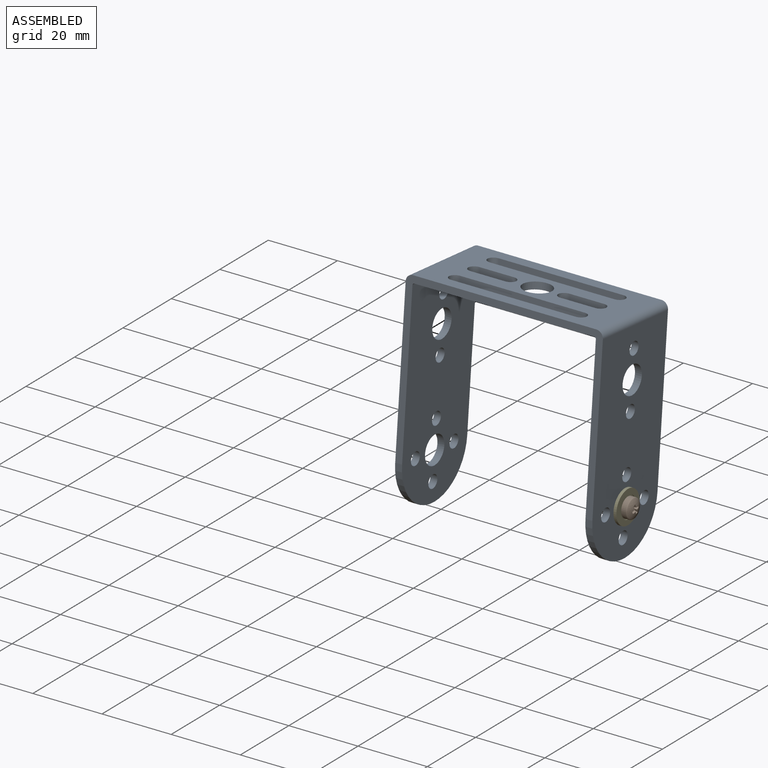
[diagram: assembled view]
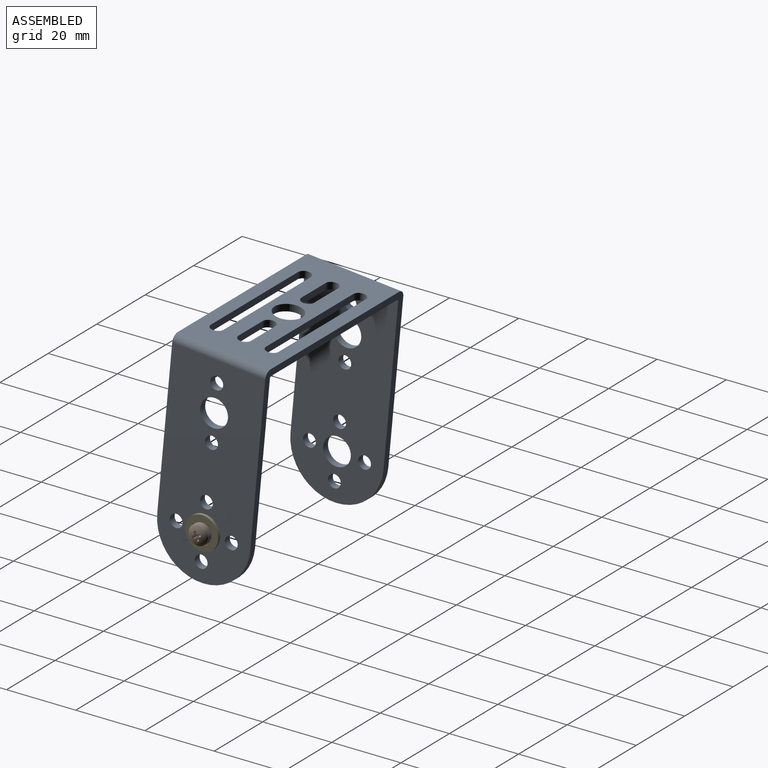
[diagram: assembled view, second angle]
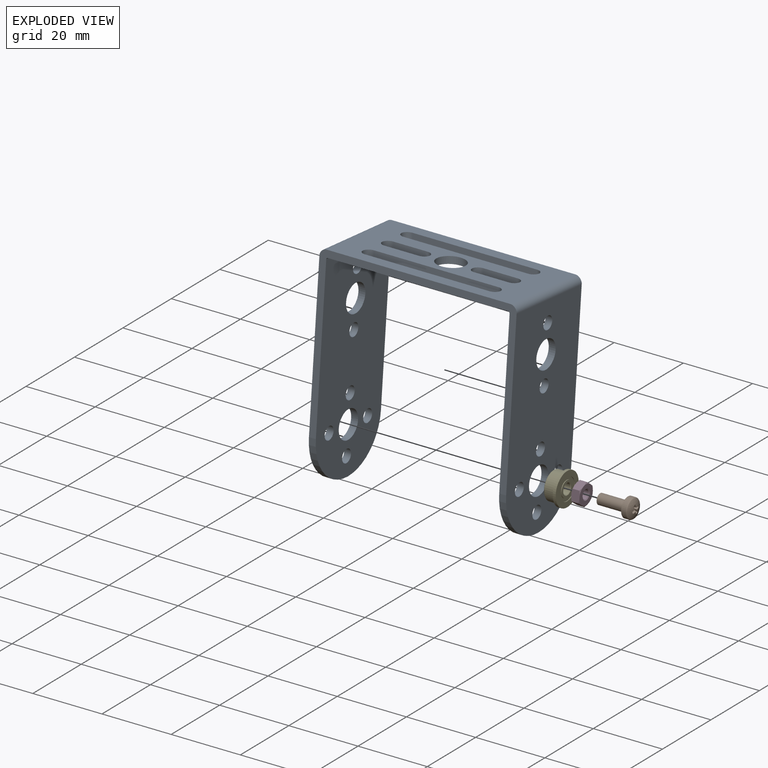
[diagram: exploded view]
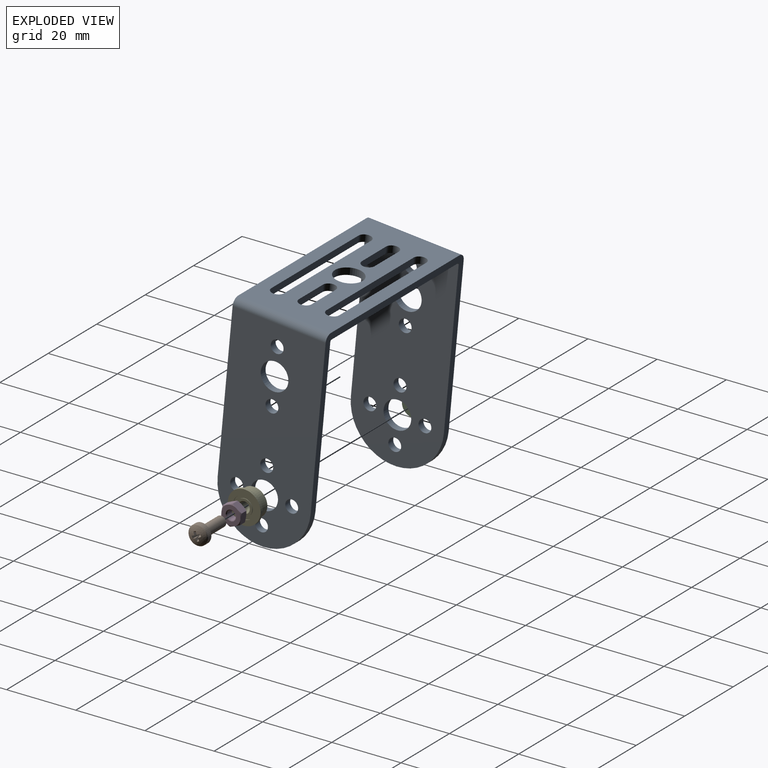
[diagram: exploded view, second angle]
ASSEMBLY  parts=5 mates=4
PART A: 47 faces, bbox 57x27x61.5 mm
  f0: cylinder r=1.85mm len=3.7mm, axis (1,0,0), area 23.2mm2, adj f19,f20
  f1: cylinder r=1.85mm len=3.7mm, axis (1,0,0), area 23.2mm2, adj f17,f22
  f2: cylinder r=1.85mm len=3.7mm, axis (1,0,0), area 23.2mm2, adj f19,f20
  f3: cylinder r=1.85mm len=3.7mm, axis (1,0,0), area 23.2mm2, adj f17,f22
  f4: cylinder r=4mm len=8mm, axis (1,0,0), area 50.3mm2, adj f19,f20
  f5: cylinder r=4mm len=8mm, axis (1,0,0), area 50.3mm2, adj f17,f22
  f6: cylinder r=1.85mm len=3.7mm, axis (-1,0,0), area 23.2mm2, adj f19,f20
  f7: cylinder r=1.85mm len=3.7mm, axis (-1,0,0), area 23.2mm2, adj f17,f22
  f8: cylinder r=1.85mm len=3.7mm, axis (-1,0,0), area 23.2mm2, adj f19,f20
  f9: cylinder r=1.85mm len=3.7mm, axis (-1,0,0), area 23.2mm2, adj f17,f22
  f10: cylinder r=1.85mm len=3.7mm, axis (-1,0,0), area 23.2mm2, adj f19,f20
  f11: cylinder r=1.85mm len=3.7mm, axis (-1,0,0), area 23.2mm2, adj f17,f22
  f12: cylinder r=1.85mm len=3.7mm, axis (-1,0,0), area 23.2mm2, adj f19,f20
  f13: cylinder r=1.85mm len=3.7mm, axis (-1,0,0), area 23.2mm2, adj f17,f22
  f14: cylinder r=4mm len=8mm, axis (-1,0,0), area 50.3mm2, adj f19,f20
  f15: cylinder r=4mm len=8mm, axis (-1,0,0), area 50.3mm2, adj f17,f22
  f16: cylinder r=4mm len=8mm, axis (0,0,1), area 50.3mm2, adj f18,f21
  f17: plane 59.5x27mm, normal (1,0,0), area 1363.2mm2, adj f1,f3,f5,f7,f9,f11,f13,f15
  f18: plane 53x27mm, normal (0,0,1), area 997.3mm2, adj f16,f23,f24,f25,f26,f27,f28,f29
  f19: plane 59.5x27mm, normal (-1,0,0), area 1363.2mm2, adj f0,f2,f4,f6,f8,f10,f12,f14
  f20: plane 59x27mm, normal (1,0,0), area 1349.7mm2, adj f0,f2,f4,f6,f8,f10,f12,f14
  f21: plane 52x27mm, normal (0,0,-1), area 970.3mm2, adj f16,f23,f24,f25,f26,f27,f28,f29
  f22: plane 59x27mm, normal (-1,0,0), area 1349.7mm2, adj f1,f3,f5,f7,f9,f11,f13,f15
  f23: plane 57x48mm, normal (0,-1,0), area 296.4mm2, adj f17,f18,f19,f20,f21,f22,f41,f42
  f24: plane 57x48mm, normal (0,1,0), area 296.4mm2, adj f17,f18,f19,f20,f21,f22,f41,f42
  f25: cylinder r=1.85mm len=3.7mm, axis (0,0,1), area 11.6mm2, adj f18,f21,f26,f28
  f26: plane 36x2mm, normal (0,-1,0), area 72mm2, adj f18,f21,f25,f27
  f27: cylinder r=1.85mm len=3.7mm, axis (0,0,1), area 11.6mm2, adj f18,f21,f26,f28
  f28: plane 36x2mm, normal (0,1,0), area 72mm2, adj f18,f21,f25,f27
  f29: cylinder r=1.85mm len=3.7mm, axis (0,0,1), area 11.6mm2, adj f18,f21,f30,f32
  f30: plane 36x2mm, normal (0,-1,0), area 72mm2, adj f18,f21,f29,f31
  f31: cylinder r=1.85mm len=3.7mm, axis (0,0,1), area 11.6mm2, adj f18,f21,f30,f32
  f32: plane 36x2mm, normal (0,1,0), area 72mm2, adj f18,f21,f29,f31
  f33: cylinder r=1.85mm len=3.7mm, axis (0,0,1), area 11.6mm2, adj f18,f21,f34,f36
  f34: plane 10x2mm, normal (0,1,0), area 20mm2, adj f18,f21,f33,f35
  f35: cylinder r=1.85mm len=3.7mm, axis (0,0,1), area 11.6mm2, adj f18,f21,f34,f36
  f36: plane 10x2mm, normal (0,-1,0), area 20mm2, adj f18,f21,f33,f35
  f37: cylinder r=1.85mm len=3.7mm, axis (0,0,1), area 11.6mm2, adj f18,f21,f38,f40
  f38: plane 10x2mm, normal (0,-1,0), area 20mm2, adj f18,f21,f37,f39
  f39: cylinder r=1.85mm len=3.7mm, axis (0,0,1), area 11.6mm2, adj f18,f21,f38,f40
  f40: plane 10x2mm, normal (0,1,0), area 20mm2, adj f18,f21,f37,f39
  f41: cylinder r=13.5mm len=27mm, axis (1,0,0), area 84.8mm2, adj f17,f22,f23,f24
  f42: cylinder r=13.5mm len=27mm, axis (-1,0,0), area 84.8mm2, adj f19,f20,f23,f24
  f43: cylinder r=2mm len=27mm, axis (0,1,0), area 84.8mm2, adj f18,f19,f23,f24
  f44: cylinder r=2mm len=27mm, axis (0,1,0), area 84.8mm2, adj f17,f18,f23,f24
  f45: cylinder r=0.5mm len=27mm, axis (0,-1,0), area 21.2mm2, adj f21,f22,f23,f24
  f46: cylinder r=0.5mm len=27mm, axis (0,-1,0), area 21.2mm2, adj f20,f21,f23,f24
PART B: 19 faces, bbox 10.4x6.6x6.2 mm
  f0: torus R=2.44mm, axis (1,0,0), area 6.3mm2, adj f1,f3
  f1: cylinder r=2.8mm len=5.6mm, axis (1,0,0), area 23.7mm2, adj f0,f8
  f2: cylinder r=1.5mm len=8mm, axis (1,0,0), area 75.4mm2, adj f8,f9
  f3: sphere r=5mm, area 20.2mm2, adj f0,f4,f5,f6,f7,f10,f11,f13
  f4: plane 1.74x0.98mm, normal (0.1,0.91,0.39), area 0.9mm2, adj f3,f10,f15
  f5: plane 1.74x1.11mm, normal (0.1,0.91,0.39), area 0.9mm2, adj f3,f11,f14
  f6: plane 1.74x1.11mm, normal (0.1,-0.91,-0.39), area 0.9mm2, adj f3,f10,f17
  f7: plane 1.74x0.98mm, normal (0.1,-0.91,-0.39), area 0.9mm2, adj f3,f11,f18
  f8: plane 5.6x5.6mm, normal (-1,0,0), area 17.6mm2, adj f1,f2
  f9: plane 3x3mm, normal (-1,0,0), area 7.1mm2, adj f2
  f10: plane 1.59x1.26mm, normal (0.58,0.32,-0.75), area 1mm2, adj f3,f4,f6,f12
  f11: plane 1.59x1.26mm, normal (0.58,-0.32,0.75), area 1mm2, adj f3,f5,f7,f12
  f12: plane 0.49x0.49mm, normal (1,0,0), area 0.1mm2, adj f10,f11,f13,f16
  f13: plane 1.6x1.26mm, normal (0.58,0.75,0.32), area 1mm2, adj f3,f12,f14,f15
  f14: plane 1.73x0.97mm, normal (0.1,-0.39,0.91), area 0.9mm2, adj f3,f5,f13
  f15: plane 1.73x1.1mm, normal (0.1,0.39,-0.91), area 0.9mm2, adj f3,f4,f13
  f16: plane 1.6x1.26mm, normal (0.58,-0.75,-0.32), area 1mm2, adj f3,f12,f17,f18
  f17: plane 1.73x0.97mm, normal (0.1,0.39,-0.91), area 0.9mm2, adj f3,f6,f16
  f18: plane 1.73x1.1mm, normal (0.1,-0.39,0.91), area 0.9mm2, adj f3,f7,f16
PART C: 6 faces, bbox 0.7x6.2x6.2 mm
  f0: cylinder r=1.7mm len=3.4mm, axis (-1,0,0), area 7.3mm2, adj f2,f3,f4,f5
  f1: cylinder r=3.1mm len=6.2mm, axis (1,0,0), area 13.5mm2, adj f2,f3,f4,f5
  f2: plane 6.2x6.2mm, normal (-1,0,0), area 20.8mm2, adj f0,f1,f4,f5
  f3: plane 6.2x6.2mm, normal (1,0,0), area 20.8mm2, adj f0,f1,f4,f5
  f4: plane 1.4x0.7mm, normal (0,1,-0.06), area 1mm2, adj f0,f1,f2,f3
  f5: plane 1.4x0.7mm, normal (0,-1,0.06), area 1mm2, adj f0,f1,f2,f3
PART D: 24 faces, bbox 2.7x6.6x6.6 mm
  f0: cylinder r=1.5mm len=3mm, axis (1,0,0), area 0.2mm2, adj f1,f4
  f1: cone r=1.5mm half-angle=55deg, axis (-1,0,0), area 2.6mm2, adj f0,f3
  f2: cone r=1.22mm half-angle=55deg, axis (1,0,0), area 2.6mm2, adj f3,f5
  f3: cylinder r=1.25mm len=2.5mm, axis (1,0,0), area 15.9mm2, adj f1,f2
  f4: plane 5.5x5.5mm, normal (-1,0,0), area 16.7mm2, adj f0,f12,f13,f14,f15,f16,f17
  f5: plane 5.5x5.5mm, normal (1,0,0), area 16.7mm2, adj f2,f18,f19,f20,f21,f22,f23
  f6: plane 3.2x2.66mm, normal (0,-0.38,0.93), area 7.1mm2, adj f7,f11,f12,f13,f22,f23
  f7: plane 2.77x2.66mm, normal (0,0.61,0.79), area 7.1mm2, adj f6,f8,f13,f14,f21,f22
  f8: plane 3.41x2.66mm, normal (0,0.99,-0.14), area 7.1mm2, adj f7,f9,f14,f15,f20,f21
  f9: plane 3.2x2.66mm, normal (0,0.38,-0.93), area 7.1mm2, adj f8,f10,f15,f16,f19,f20
  f10: plane 2.77x2.66mm, normal (0,-0.61,-0.79), area 7.1mm2, adj f9,f11,f16,f17,f18,f19
  f11: plane 3.41x2.66mm, normal (0,-0.99,0.14), area 7.1mm2, adj f6,f10,f12,f17,f18,f23
  f12: cone r=2.75mm half-angle=60deg, axis (1,0,0), area 0.7mm2, adj f4,f6,f11
  f13: cone r=2.75mm half-angle=60deg, axis (1,0,0), area 0.7mm2, adj f4,f6,f7
  f14: cone r=2.75mm half-angle=60deg, axis (1,0,0), area 0.7mm2, adj f4,f7,f8
  f15: cone r=2.75mm half-angle=60deg, axis (1,0,0), area 0.7mm2, adj f4,f8,f9
  f16: cone r=2.75mm half-angle=60deg, axis (1,0,0), area 0.7mm2, adj f4,f9,f10
  f17: cone r=2.75mm half-angle=60deg, axis (1,0,0), area 0.7mm2, adj f4,f10,f11
  f18: cone r=2.75mm half-angle=60deg, axis (-1,0,0), area 0.7mm2, adj f5,f10,f11
  f19: cone r=2.75mm half-angle=60deg, axis (-1,0,0), area 0.7mm2, adj f5,f9,f10
  f20: cone r=2.75mm half-angle=60deg, axis (-1,0,0), area 0.7mm2, adj f5,f8,f9
  f21: cone r=2.75mm half-angle=60deg, axis (-1,0,0), area 0.7mm2, adj f5,f7,f8
  f22: cone r=2.75mm half-angle=60deg, axis (-1,0,0), area 0.7mm2, adj f5,f6,f7
  f23: cone r=2.75mm half-angle=60deg, axis (-1,0,0), area 0.7mm2, adj f5,f6,f11
PART E: 18 faces, bbox 4x9.5x9.5 mm
  f0: torus R=4mm, axis (1,0,0), area 2.4mm2, adj f6,f15
  f1: cone r=4mm half-angle=45deg, axis (1,0,0), area 5.2mm2, adj f6,f16
  f2: cone r=1.65mm half-angle=45deg, axis (-1,0,0), area 2.1mm2, adj f10,f11
  f3: cone r=1.5mm half-angle=45deg, axis (1,0,0), area 2.1mm2, adj f10,f12
  f4: cylinder r=2.33mm len=4.66mm, axis (1,0,0), area 2.9mm2, adj f11,f17
  f5: cylinder r=3.17mm len=6.33mm, axis (1,0,0), area 4mm2, adj f16,f17
  f6: cylinder r=4mm len=8mm, axis (1,0,0), area 74.9mm2, adj f0,f1
  f7: cylinder r=4.75mm len=9.5mm, axis (1,0,0), area 25.4mm2, adj f14,f15
  f8: cylinder r=3.17mm len=6.33mm, axis (1,0,0), area 4mm2, adj f13,f14
  f9: cylinder r=2.33mm len=4.66mm, axis (1,0,0), area 2.9mm2, adj f12,f13
  f10: cylinder r=1.5mm len=3.7mm, axis (1,0,0), area 34.9mm2, adj f2,f3
  f11: plane 4.66x4.66mm, normal (-1,0,0), area 8.5mm2, adj f2,f4
  f12: plane 4.66x4.66mm, normal (1,0,0), area 8.5mm2, adj f3,f9
  f13: plane 6.33x6.33mm, normal (1,0,0), area 14.4mm2, adj f8,f9
  f14: plane 9.5x9.5mm, normal (1,0,0), area 39.4mm2, adj f7,f8
  f15: plane 9.5x9.5mm, normal (-1,0,0), area 20.1mm2, adj f0,f7
  f16: plane 7.7x7.7mm, normal (-1,0,0), area 15.1mm2, adj f1,f5
  f17: plane 6.33x6.33mm, normal (-1,0,0), area 14.4mm2, adj f4,f5
PLACE A rot(axis=(-1,0,0),5.4deg) t=(-7.41,-10.38,-6.89)mm
PLACE B t=(17.98,-20,11.74)mm
PLACE C t=(34.62,-20,11.74)mm
PLACE D t=(39.22,-20,11.74)mm
PLACE E rot(axis=(-1,0,0),5.4deg) t=(31.31,-18.81,13.57)mm
MATE revolute B.f0 <-> E.f0  axis (-1,0,0) through (8,0,0)mm
MATE fastened E.f0 <-> A.f14  axis (-1,0,0) through (7.15,0,0)mm
MATE fastened D.f0 <-> B.f0  axis (-1,0,0) through (0,0,0)mm
MATE fastened D.f0 <-> C.f0  axis (1,0,0) through (2.4,0,0)mm
